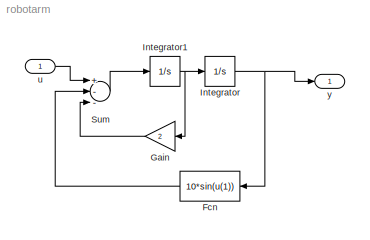
MODEL robotarm
KIND model
BLOCK [Fcn] Fcn
  Expr = 10*sin(u(1))
  SID = 2
BLOCK [Gain] Gain
  Gain = 2
  SID = 3
BLOCK [Integrator] Integrator
  Ports = [1, 1]
  SID = 4
BLOCK [Integrator] Integrator1
  Ports = [1, 1]
  SID = 5
BLOCK [Sum] Sum
  Inputs = +--
  Ports = [3, 1]
  SID = 6
BLOCK [Inport] u
  IconDisplay = Port number
  SID = 1
BLOCK [Outport] y
  IconDisplay = Port number
  SID = 7
LINE Fcn:1 -> Sum:2
LINE Gain:1 -> Sum:3
NET Integrator1:1 -> Gain:1, Integrator:1
NET Integrator:1 -> Fcn:1, y:1
LINE Sum:1 -> Integrator1:1
LINE u:1 -> Sum:1
note: NET lines group one-source signal fan-out (src -> all destinations, sorted); 1:1 wires keep LINE
